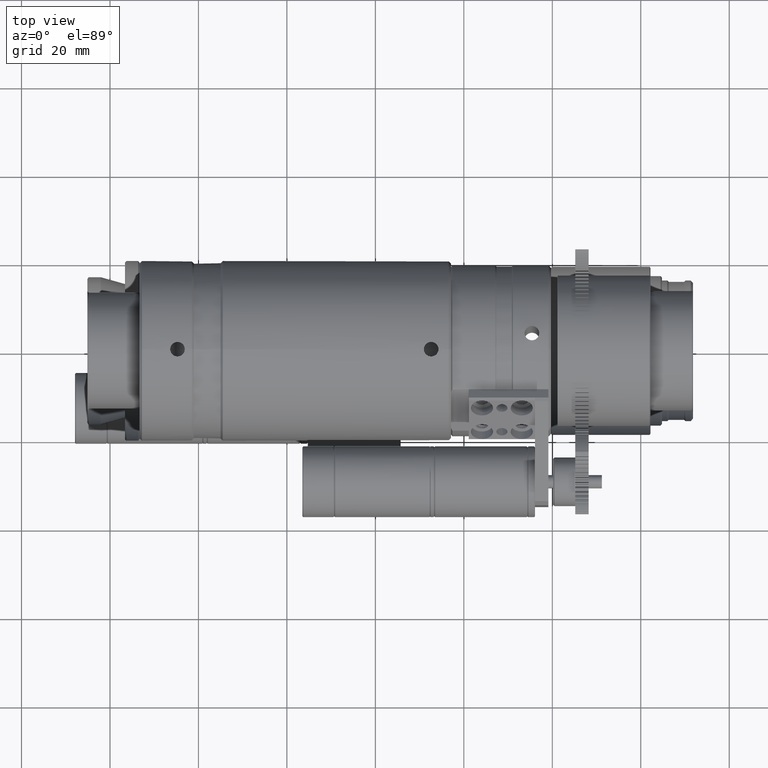
[diagram: clean part render]
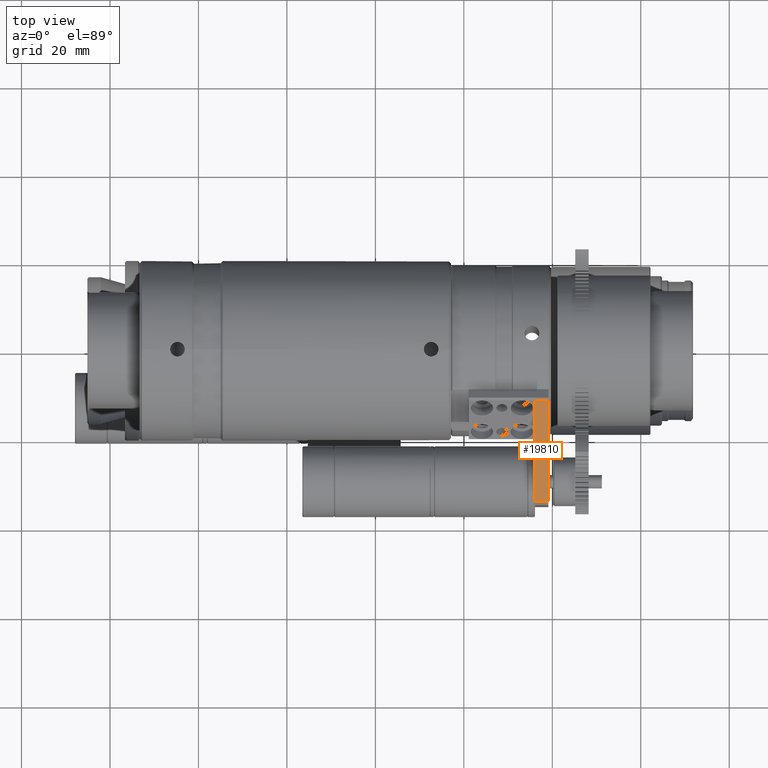
[diagram: same view with one face highlighted and labeled with its STEP entity id]
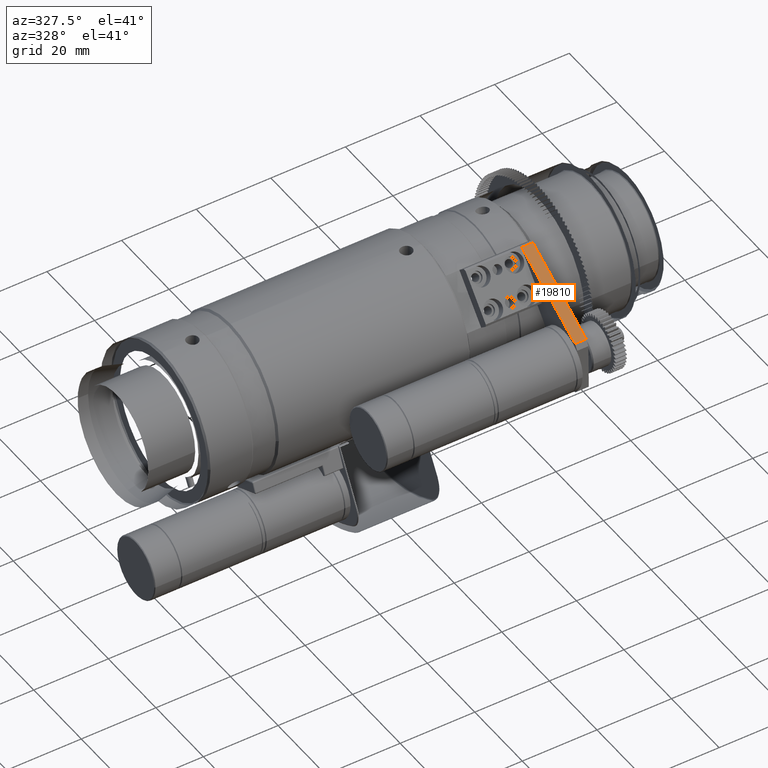
[diagram: same view with one face highlighted and labeled with its STEP entity id]
A machine part, top view. The second image highlights one B-rep face of the part: STEP entity #19810.
A second angle (auxiliary view) of the same face is appended — the face is thin or edge-on in the first view.
In plain terms, the highlighted planar face has unit normal (-0, -0.4848, 0.8746).
Its self-contained STEP definition (entity closure, byte-faithful):
#3378 = CARTESIAN_POINT ( 'NONE',  ( 96.09999999996362900, -34.97554095728143200, 5.912520914019595800 ) ) ;
#4581 = LINE ( 'NONE', #23248, #39080 ) ;
#6997 = DIRECTION ( 'NONE',  ( -8.096082255556514400E-017, -0.4848096202463477700, 0.8746197071393898600 ) ) ;
#7069 = EDGE_LOOP ( 'NONE', ( #39191, #31466, #32104, #27469 ) ) ;
#8804 = EDGE_CURVE ( 'NONE', #29196, #27138, #4581, .T. ) ;
#9885 = VECTOR ( 'NONE', #19489, 1000.000000000000000 ) ;
#10266 = LINE ( 'NONE', #19217, #9885 ) ;
#10808 = EDGE_CURVE ( 'NONE', #27867, #34998, #11700, .T. ) ;
#11700 = LINE ( 'NONE', #26529, #39146 ) ;
#16755 = EDGE_CURVE ( 'NONE', #34998, #29196, #10266, .T. ) ;
#19217 = CARTESIAN_POINT ( 'NONE',  ( 99.09999999996362900, -34.10092125014205100, 6.397330534265947200 ) ) ;
#19489 = DIRECTION ( 'NONE',  ( -5.416932144060313700E-016, 0.8746197071393898600, 0.4848096202463476600 ) ) ;
#19810 = ADVANCED_FACE ( 'NONE', ( #38745 ), #24596, .T. ) ;
#20407 = DIRECTION ( 'NONE',  ( -5.416932144060314700E-016, 0.8746197071393898600, 0.4848096202463477200 ) ) ;
#22522 = DIRECTION ( 'NONE',  ( -1.000000000000000000, 3.925058563799548100E-017, -7.080993091331248800E-017 ) ) ;
#23248 = CARTESIAN_POINT ( 'NONE',  ( 96.09999999996362900, -11.69379783523569200, 18.81780186016817400 ) ) ;
#24596 = PLANE ( 'NONE',  #36328 ) ;
#24716 = VECTOR ( 'NONE', #20407, 1000.000000000000000 ) ;
#24843 = LINE ( 'NONE', #27312, #24716 ) ;
#25075 = CARTESIAN_POINT ( 'NONE',  ( 96.09999999996361500, -34.10092125014205100, 6.397330534265943700 ) ) ;
#26217 = DIRECTION ( 'NONE',  ( 1.000000000000000000, -3.925058563799548100E-017, 7.080993091331248800E-017 ) ) ;
#26529 = CARTESIAN_POINT ( 'NONE',  ( 96.09999999996362900, -34.10092125014205100, 6.397330534265940100 ) ) ;
#27138 = VERTEX_POINT ( 'NONE', #40465 ) ;
#27312 = CARTESIAN_POINT ( 'NONE',  ( 96.09999999996362900, -34.10092125014205100, 6.397330534265946300 ) ) ;
#27469 = ORIENTED_EDGE ( 'NONE', *, *, #10808, .T. ) ;
#27867 = VERTEX_POINT ( 'NONE', #25075 ) ;
#29196 = VERTEX_POINT ( 'NONE', #30068 ) ;
#30068 = CARTESIAN_POINT ( 'NONE',  ( 99.09999999996360000, -11.69379783523569200, 18.81780186016817400 ) ) ;
#31466 = ORIENTED_EDGE ( 'NONE', *, *, #8804, .T. ) ;
#31524 = DIRECTION ( 'NONE',  ( 0.0000000000000000000, -0.8746197071393898600, -0.4848096202463477700 ) ) ;
#32104 = ORIENTED_EDGE ( 'NONE', *, *, #40883, .F. ) ;
#33573 = CARTESIAN_POINT ( 'NONE',  ( 99.09999999996361500, -34.10092125014205100, 6.397330534265943700 ) ) ;
#34998 = VERTEX_POINT ( 'NONE', #33573 ) ;
#36328 = AXIS2_PLACEMENT_3D ( 'NONE', #3378, #6997, #31524 ) ;
#38745 = FACE_OUTER_BOUND ( 'NONE', #7069, .T. ) ;
#39080 = VECTOR ( 'NONE', #22522, 1000.000000000000000 ) ;
#39146 = VECTOR ( 'NONE', #26217, 1000.000000000000000 ) ;
#39191 = ORIENTED_EDGE ( 'NONE', *, *, #16755, .T. ) ;
#40465 = CARTESIAN_POINT ( 'NONE',  ( 96.09999999996360000, -11.69379783523570100, 18.81780186016817100 ) ) ;
#40883 = EDGE_CURVE ( 'NONE', #27867, #27138, #24843, .T. ) ;